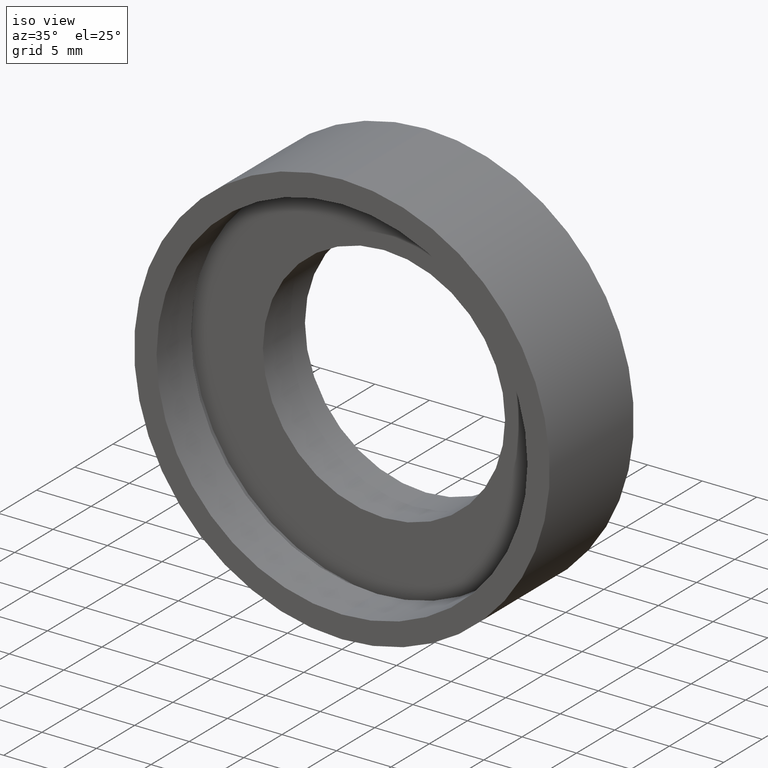
[diagram: clean part render]
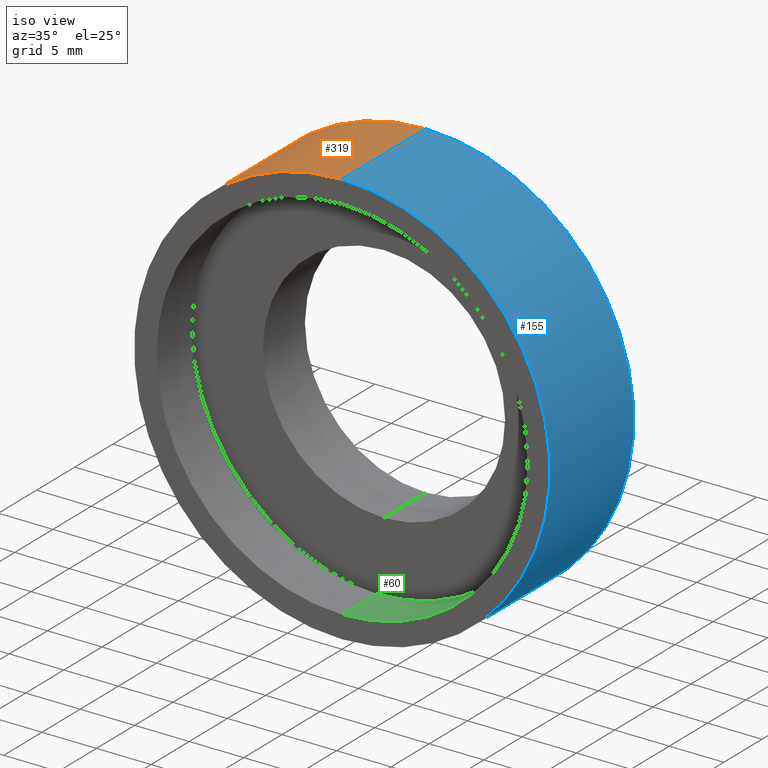
[diagram: same view with three faces highlighted in distinct colors, each labeled with its STEP entity id]
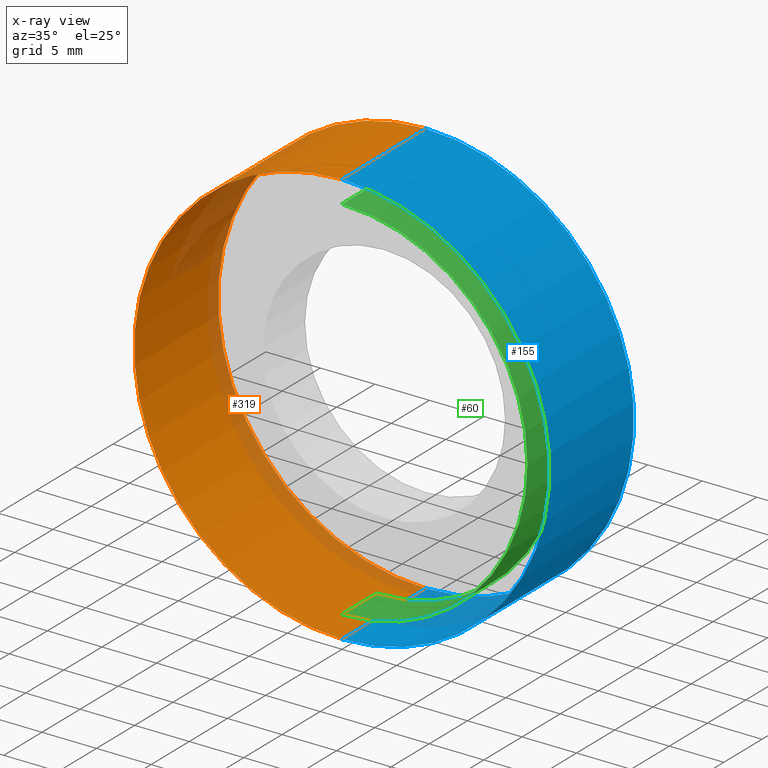
[diagram: x-ray of the same camera — body ghosted, the three highlighted faces saturated]
A machine part, iso view with three faces highlighted in distinct colors.
The next image is the same camera in x-ray (body ghosted, the three faces saturated) — at least one of them is partly hidden behind the body in this view.
Their STEP definitions:

[orange] entity #319 — the highlighted cylindrical surface (partial cylindrical patch) has radius 19.05 mm, axis along (-0, 1, -0).
#20 = VERTEX_POINT ( 'NONE', #54 ) ;
#27 = CARTESIAN_POINT ( 'NONE',  ( 2.332952152375708400E-015, 60.02082041425541100, -19.05000000000000400 ) ) ;
#34 = EDGE_CURVE ( 'NONE', #20, #72, #189, .T. ) ;
#42 = CARTESIAN_POINT ( 'NONE',  ( 0.0000000000000000000, 60.02082041425541100, 0.0000000000000000000 ) ) ;
#44 = LINE ( 'NONE', #27, #376 ) ;
#54 = CARTESIAN_POINT ( 'NONE',  ( 0.0000000000000000000, 0.0000000000000000000, 19.05000000000000400 ) ) ;
#61 = CIRCLE ( 'NONE', #337, 19.05000000000000400 ) ;
#62 = ORIENTED_EDGE ( 'NONE', *, *, #366, .F. ) ;
#71 = DIRECTION ( 'NONE',  ( -0.0000000000000000000, 1.000000000000000000, -0.0000000000000000000 ) ) ;
#72 = VERTEX_POINT ( 'NONE', #369 ) ;
#88 = EDGE_CURVE ( 'NONE', #142, #20, #61, .T. ) ;
#98 = CYLINDRICAL_SURFACE ( 'NONE', #377, 19.05000000000000400 ) ;
#116 = AXIS2_PLACEMENT_3D ( 'NONE', #118, #292, #130 ) ;
#118 = CARTESIAN_POINT ( 'NONE',  ( 0.0000000000000000000, 10.99999999999999600, 0.0000000000000000000 ) ) ;
#130 = DIRECTION ( 'NONE',  ( 0.0000000000000000000, 0.0000000000000000000, 1.000000000000000000 ) ) ;
#142 = VERTEX_POINT ( 'NONE', #288 ) ;
#161 = ORIENTED_EDGE ( 'NONE', *, *, #88, .T. ) ;
#168 = DIRECTION ( 'NONE',  ( 0.0000000000000000000, 0.0000000000000000000, 1.000000000000000000 ) ) ;
#189 = LINE ( 'NONE', #405, #306 ) ;
#257 = VERTEX_POINT ( 'NONE', #262 ) ;
#262 = CARTESIAN_POINT ( 'NONE',  ( 2.332952152375708400E-015, 10.99999999999999600, -19.05000000000000400 ) ) ;
#288 = CARTESIAN_POINT ( 'NONE',  ( 2.332952152375708400E-015, 0.0000000000000000000, -19.05000000000000400 ) ) ;
#292 = DIRECTION ( 'NONE',  ( -0.0000000000000000000, 1.000000000000000000, -0.0000000000000000000 ) ) ;
#306 = VECTOR ( 'NONE', #71, 1000.000000000000000 ) ;
#319 = ADVANCED_FACE ( 'NONE', ( #339 ), #98, .T. ) ;
#337 = AXIS2_PLACEMENT_3D ( 'NONE', #432, #382, #380 ) ;
#339 = FACE_OUTER_BOUND ( 'NONE', #391, .T. ) ;
#349 = ORIENTED_EDGE ( 'NONE', *, *, #371, .F. ) ;
#360 = ORIENTED_EDGE ( 'NONE', *, *, #34, .T. ) ;
#366 = EDGE_CURVE ( 'NONE', #142, #257, #44, .T. ) ;
#369 = CARTESIAN_POINT ( 'NONE',  ( 0.0000000000000000000, 10.99999999999999600, 19.05000000000000400 ) ) ;
#371 = EDGE_CURVE ( 'NONE', #257, #72, #393, .T. ) ;
#376 = VECTOR ( 'NONE', #404, 1000.000000000000000 ) ;
#377 = AXIS2_PLACEMENT_3D ( 'NONE', #42, #401, #168 ) ;
#380 = DIRECTION ( 'NONE',  ( 0.0000000000000000000, 0.0000000000000000000, 1.000000000000000000 ) ) ;
#382 = DIRECTION ( 'NONE',  ( -0.0000000000000000000, 1.000000000000000000, -0.0000000000000000000 ) ) ;
#391 = EDGE_LOOP ( 'NONE', ( #62, #161, #360, #349 ) ) ;
#393 = CIRCLE ( 'NONE', #116, 19.05000000000000400 ) ;
#401 = DIRECTION ( 'NONE',  ( -0.0000000000000000000, 1.000000000000000000, -0.0000000000000000000 ) ) ;
#404 = DIRECTION ( 'NONE',  ( -0.0000000000000000000, 1.000000000000000000, -0.0000000000000000000 ) ) ;
#405 = CARTESIAN_POINT ( 'NONE',  ( 0.0000000000000000000, 60.02082041425541100, 19.05000000000000400 ) ) ;
#432 = CARTESIAN_POINT ( 'NONE',  ( 0.0000000000000000000, 0.0000000000000000000, 0.0000000000000000000 ) ) ;

[blue] entity #155 — the highlighted cylindrical surface (partial cylindrical patch) has radius 19.05 mm, axis along (-0, 1, -0).
#5 = DIRECTION ( 'NONE',  ( -0.0000000000000000000, 1.000000000000000000, -0.0000000000000000000 ) ) ;
#20 = VERTEX_POINT ( 'NONE', #54 ) ;
#26 = AXIS2_PLACEMENT_3D ( 'NONE', #108, #195, #185 ) ;
#27 = CARTESIAN_POINT ( 'NONE',  ( 2.332952152375708400E-015, 60.02082041425541100, -19.05000000000000400 ) ) ;
#31 = CIRCLE ( 'NONE', #216, 19.05000000000000400 ) ;
#34 = EDGE_CURVE ( 'NONE', #20, #72, #189, .T. ) ;
#38 = DIRECTION ( 'NONE',  ( 0.0000000000000000000, 0.0000000000000000000, 1.000000000000000000 ) ) ;
#44 = LINE ( 'NONE', #27, #376 ) ;
#45 = CYLINDRICAL_SURFACE ( 'NONE', #86, 19.05000000000000400 ) ;
#54 = CARTESIAN_POINT ( 'NONE',  ( 0.0000000000000000000, 0.0000000000000000000, 19.05000000000000400 ) ) ;
#71 = DIRECTION ( 'NONE',  ( -0.0000000000000000000, 1.000000000000000000, -0.0000000000000000000 ) ) ;
#72 = VERTEX_POINT ( 'NONE', #369 ) ;
#77 = ORIENTED_EDGE ( 'NONE', *, *, #237, .F. ) ;
#86 = AXIS2_PLACEMENT_3D ( 'NONE', #358, #166, #38 ) ;
#100 = ORIENTED_EDGE ( 'NONE', *, *, #230, .T. ) ;
#101 = CIRCLE ( 'NONE', #26, 19.05000000000000400 ) ;
#108 = CARTESIAN_POINT ( 'NONE',  ( 0.0000000000000000000, 10.99999999999999600, 0.0000000000000000000 ) ) ;
#142 = VERTEX_POINT ( 'NONE', #288 ) ;
#155 = ADVANCED_FACE ( 'NONE', ( #212 ), #45, .T. ) ;
#166 = DIRECTION ( 'NONE',  ( -0.0000000000000000000, 1.000000000000000000, -0.0000000000000000000 ) ) ;
#184 = DIRECTION ( 'NONE',  ( 0.0000000000000000000, 0.0000000000000000000, 1.000000000000000000 ) ) ;
#185 = DIRECTION ( 'NONE',  ( 0.0000000000000000000, 0.0000000000000000000, 1.000000000000000000 ) ) ;
#189 = LINE ( 'NONE', #405, #306 ) ;
#195 = DIRECTION ( 'NONE',  ( -0.0000000000000000000, 1.000000000000000000, -0.0000000000000000000 ) ) ;
#200 = ORIENTED_EDGE ( 'NONE', *, *, #366, .T. ) ;
#212 = FACE_OUTER_BOUND ( 'NONE', #331, .T. ) ;
#216 = AXIS2_PLACEMENT_3D ( 'NONE', #402, #5, #184 ) ;
#230 = EDGE_CURVE ( 'NONE', #20, #142, #31, .T. ) ;
#237 = EDGE_CURVE ( 'NONE', #72, #257, #101, .T. ) ;
#256 = ORIENTED_EDGE ( 'NONE', *, *, #34, .F. ) ;
#257 = VERTEX_POINT ( 'NONE', #262 ) ;
#262 = CARTESIAN_POINT ( 'NONE',  ( 2.332952152375708400E-015, 10.99999999999999600, -19.05000000000000400 ) ) ;
#288 = CARTESIAN_POINT ( 'NONE',  ( 2.332952152375708400E-015, 0.0000000000000000000, -19.05000000000000400 ) ) ;
#306 = VECTOR ( 'NONE', #71, 1000.000000000000000 ) ;
#331 = EDGE_LOOP ( 'NONE', ( #100, #200, #77, #256 ) ) ;
#358 = CARTESIAN_POINT ( 'NONE',  ( 0.0000000000000000000, 60.02082041425541100, 0.0000000000000000000 ) ) ;
#366 = EDGE_CURVE ( 'NONE', #142, #257, #44, .T. ) ;
#369 = CARTESIAN_POINT ( 'NONE',  ( 0.0000000000000000000, 10.99999999999999600, 19.05000000000000400 ) ) ;
#376 = VECTOR ( 'NONE', #404, 1000.000000000000000 ) ;
#402 = CARTESIAN_POINT ( 'NONE',  ( 0.0000000000000000000, 0.0000000000000000000, 0.0000000000000000000 ) ) ;
#404 = DIRECTION ( 'NONE',  ( -0.0000000000000000000, 1.000000000000000000, -0.0000000000000000000 ) ) ;
#405 = CARTESIAN_POINT ( 'NONE',  ( 0.0000000000000000000, 60.02082041425541100, 19.05000000000000400 ) ) ;

[green] entity #60 — the highlighted cylindrical surface (partial cylindrical patch) has radius 17 mm, axis along (-0, 1, -0).
#6 = CARTESIAN_POINT ( 'NONE',  ( 2.081899558550501500E-015, 0.0000000000000000000, -17.00000000000000700 ) ) ;
#25 = CARTESIAN_POINT ( 'NONE',  ( 0.0000000000000000000, 60.02082041425541100, 17.00000000000000700 ) ) ;
#29 = VERTEX_POINT ( 'NONE', #127 ) ;
#30 = EDGE_CURVE ( 'NONE', #39, #279, #84, .T. ) ;
#32 = ORIENTED_EDGE ( 'NONE', *, *, #30, .F. ) ;
#39 = VERTEX_POINT ( 'NONE', #6 ) ;
#60 = ADVANCED_FACE ( 'NONE', ( #251 ), #246, .F. ) ;
#76 = VECTOR ( 'NONE', #183, 1000.000000000000000 ) ;
#84 = LINE ( 'NONE', #221, #76 ) ;
#91 = AXIS2_PLACEMENT_3D ( 'NONE', #145, #407, #175 ) ;
#96 = DIRECTION ( 'NONE',  ( -0.0000000000000000000, 1.000000000000000000, -0.0000000000000000000 ) ) ;
#104 = CARTESIAN_POINT ( 'NONE',  ( 2.081899558550501500E-015, 4.499999999999997300, -17.00000000000000700 ) ) ;
#127 = CARTESIAN_POINT ( 'NONE',  ( 0.0000000000000000000, 0.0000000000000000000, 17.00000000000000700 ) ) ;
#145 = CARTESIAN_POINT ( 'NONE',  ( 0.0000000000000000000, 60.02082041425541100, 0.0000000000000000000 ) ) ;
#175 = DIRECTION ( 'NONE',  ( 0.0000000000000000000, 0.0000000000000000000, 1.000000000000000000 ) ) ;
#183 = DIRECTION ( 'NONE',  ( -0.0000000000000000000, 1.000000000000000000, -0.0000000000000000000 ) ) ;
#206 = VECTOR ( 'NONE', #289, 1000.000000000000000 ) ;
#213 = ORIENTED_EDGE ( 'NONE', *, *, #312, .F. ) ;
#221 = CARTESIAN_POINT ( 'NONE',  ( 2.081899558550501500E-015, 60.02082041425541100, -17.00000000000000700 ) ) ;
#228 = CIRCLE ( 'NONE', #242, 17.00000000000000700 ) ;
#233 = VERTEX_POINT ( 'NONE', #269 ) ;
#236 = AXIS2_PLACEMENT_3D ( 'NONE', #428, #96, #299 ) ;
#242 = AXIS2_PLACEMENT_3D ( 'NONE', #280, #318, #346 ) ;
#244 = CIRCLE ( 'NONE', #236, 17.00000000000000700 ) ;
#246 = CYLINDRICAL_SURFACE ( 'NONE', #91, 17.00000000000000700 ) ;
#251 = FACE_OUTER_BOUND ( 'NONE', #314, .T. ) ;
#269 = CARTESIAN_POINT ( 'NONE',  ( 0.0000000000000000000, 4.499999999999997300, 17.00000000000000700 ) ) ;
#270 = EDGE_CURVE ( 'NONE', #233, #279, #244, .T. ) ;
#279 = VERTEX_POINT ( 'NONE', #104 ) ;
#280 = CARTESIAN_POINT ( 'NONE',  ( 0.0000000000000000000, 0.0000000000000000000, 0.0000000000000000000 ) ) ;
#283 = ORIENTED_EDGE ( 'NONE', *, *, #324, .T. ) ;
#284 = ORIENTED_EDGE ( 'NONE', *, *, #270, .T. ) ;
#289 = DIRECTION ( 'NONE',  ( -0.0000000000000000000, 1.000000000000000000, -0.0000000000000000000 ) ) ;
#299 = DIRECTION ( 'NONE',  ( 0.0000000000000000000, 0.0000000000000000000, 1.000000000000000000 ) ) ;
#312 = EDGE_CURVE ( 'NONE', #29, #39, #228, .T. ) ;
#314 = EDGE_LOOP ( 'NONE', ( #32, #213, #283, #284 ) ) ;
#318 = DIRECTION ( 'NONE',  ( -0.0000000000000000000, 1.000000000000000000, -0.0000000000000000000 ) ) ;
#324 = EDGE_CURVE ( 'NONE', #29, #233, #418, .T. ) ;
#346 = DIRECTION ( 'NONE',  ( 0.0000000000000000000, 0.0000000000000000000, 1.000000000000000000 ) ) ;
#407 = DIRECTION ( 'NONE',  ( -0.0000000000000000000, 1.000000000000000000, -0.0000000000000000000 ) ) ;
#418 = LINE ( 'NONE', #25, #206 ) ;
#428 = CARTESIAN_POINT ( 'NONE',  ( 0.0000000000000000000, 4.499999999999997300, 0.0000000000000000000 ) ) ;